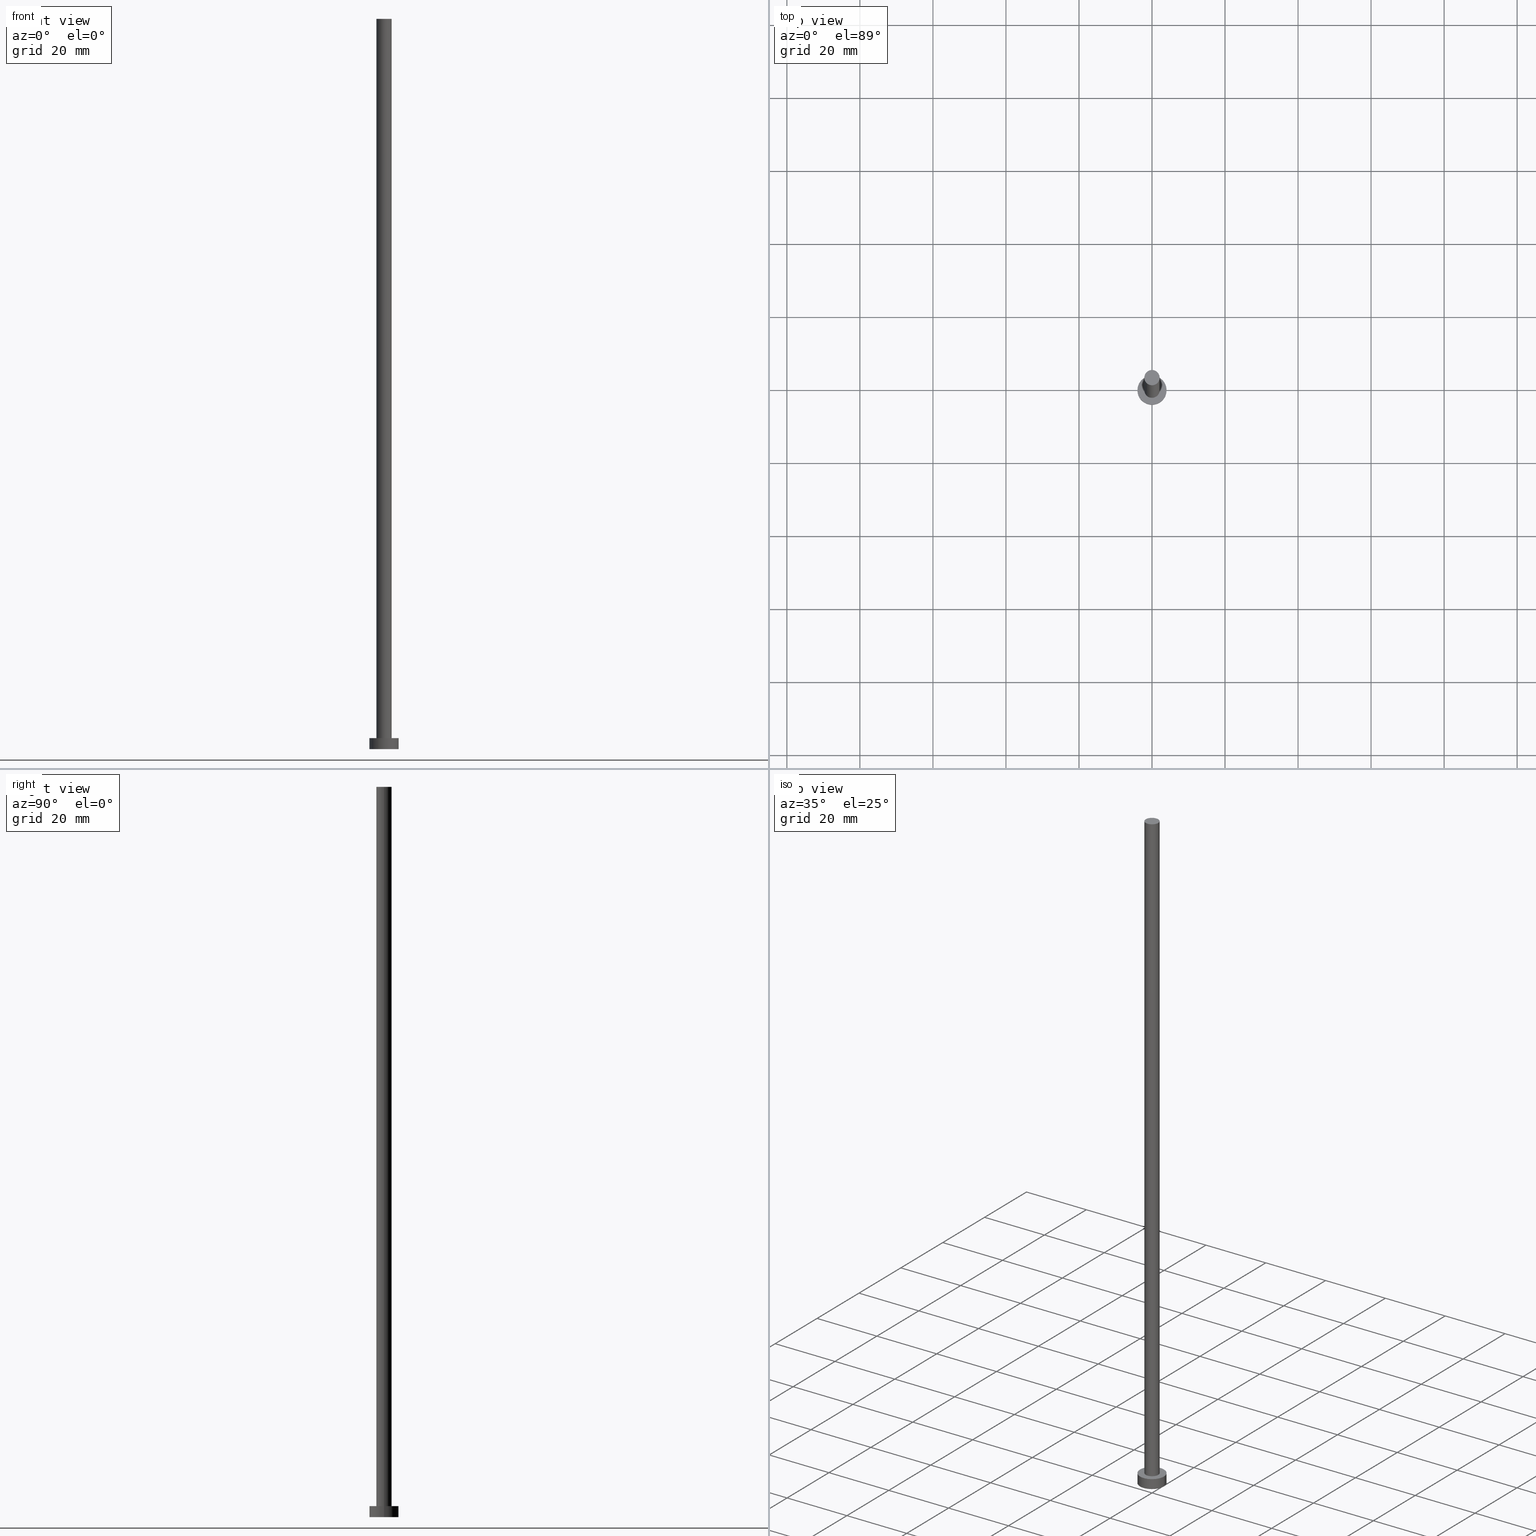
[diagram: canonical four-view strip — front | top / right | iso, engineering-drawing reading convention]
A machine part, canonical four-view strip (front | top / right | iso — engineering-drawing reading convention). The complete STEP part file that produces these views, byte-faithful:
ISO-10303-21;
HEADER;
FILE_DESCRIPTION (( 'STEP AP203' ),
    '1' );
FILE_NAME ('26c4.STEP',
    '2023-02-13T15:05:59',
    ( '' ),
    ( '' ),
    'SwSTEP 2.0',
    'SolidWorks 2019',
    '' );
FILE_SCHEMA (( 'CONFIG_CONTROL_DESIGN' ));
ENDSEC;

DATA;
#1 = ORIENTED_EDGE ( 'NONE', *, *, #224, .T. ) ;
#2 = PRODUCT_RELATED_PRODUCT_CATEGORY ( 'detail', '', ( #235 ) ) ;
#3 = DATE_AND_TIME ( #102, #132 ) ;
#4 = APPLICATION_CONTEXT ( 'configuration controlled 3d designs of mechanical parts and assemblies' ) ;
#5 = ADVANCED_FACE ( 'NONE', ( #133 ), #61, .T. ) ;
#6 = DIRECTION ( 'NONE',  ( 1.000000000000000000, 0.000000000000000000, -0.000000000000000000 ) ) ;
#7 = CARTESIAN_POINT ( 'NONE',  ( -4.000000000000000000, 0.000000000000000000, 3.000000000000000000 ) ) ;
#8 = DIRECTION ( 'NONE',  ( 0.000000000000000000, 0.000000000000000000, 1.000000000000000000 ) ) ;
#9 = CARTESIAN_POINT ( 'NONE',  ( 0.000000000000000000, 0.000000000000000000, 200.0000000000000000 ) ) ;
#10 = APPROVAL_STATUS ( 'not_yet_approved' ) ;
#11 = PLANE ( 'NONE',  #155 ) ;
#12 = LOCAL_TIME ( 16, 5, 59.00000000000000000, #193 ) ;
#13 = DATE_AND_TIME ( #156, #230 ) ;
#14 = EDGE_CURVE ( 'NONE', #70, #210, #127, .T. ) ;
#15 = AXIS2_PLACEMENT_3D ( 'NONE', #16, #176, #145 ) ;
#16 = CARTESIAN_POINT ( 'NONE',  ( 0.000000000000000000, 0.000000000000000000, 200.0000000000000000 ) ) ;
#17 = CYLINDRICAL_SURFACE ( 'NONE', #54, 4.000000000000000000 ) ;
#18 = LINE ( 'NONE', #83, #177 ) ;
#19 = CC_DESIGN_PERSON_AND_ORGANIZATION_ASSIGNMENT ( #106, #201, ( #235 ) ) ;
#20 = DIRECTION ( 'NONE',  ( -0.000000000000000000, -0.000000000000000000, -1.000000000000000000 ) ) ;
#21 = DIRECTION ( 'NONE',  ( 0.000000000000000000, 0.000000000000000000, 1.000000000000000000 ) ) ;
#22 = CARTESIAN_POINT ( 'NONE',  ( 0.000000000000000000, 0.000000000000000000, 0.000000000000000000 ) ) ;
#23 = CARTESIAN_POINT ( 'NONE',  ( 2.100000000000000089, 2.571758278209441957E-16, 3.000000000000000000 ) ) ;
#24 = DIRECTION ( 'NONE',  ( 0.000000000000000000, 0.000000000000000000, 1.000000000000000000 ) ) ;
#25 = DIRECTION ( 'NONE',  ( -0.000000000000000000, -0.000000000000000000, -1.000000000000000000 ) ) ;
#26 = VECTOR ( 'NONE', #25, 1000.000000000000000 ) ;
#27 = ORIENTED_EDGE ( 'NONE', *, *, #236, .F. ) ;
#28 = VERTEX_POINT ( 'NONE', #7 ) ;
#29 = EDGE_LOOP ( 'NONE', ( #31, #116, #153, #96 ) ) ;
#30 = APPROVAL_ROLE ( '' ) ;
#31 = ORIENTED_EDGE ( 'NONE', *, *, #124, .F. ) ;
#32 = VERTEX_POINT ( 'NONE', #80 ) ;
#33 = ORIENTED_EDGE ( 'NONE', *, *, #56, .F. ) ;
#34 = AXIS2_PLACEMENT_3D ( 'NONE', #208, #112, #183 ) ;
#35 = EDGE_CURVE ( 'NONE', #210, #70, #85, .T. ) ;
#36 = CARTESIAN_POINT ( 'NONE',  ( 4.000000000000000000, 4.898587196589412829E-16, 0.000000000000000000 ) ) ;
#37 = DIRECTION ( 'NONE',  ( 1.000000000000000000, 0.000000000000000000, 0.000000000000000000 ) ) ;
#38 = ORIENTED_EDGE ( 'NONE', *, *, #124, .T. ) ;
#39 = PERSON_AND_ORGANIZATION ( #139, #142 ) ;
#40 = ORIENTED_EDGE ( 'NONE', *, *, #95, .T. ) ;
#41 = ORIENTED_EDGE ( 'NONE', *, *, #35, .T. ) ;
#42 =( NAMED_UNIT ( * ) PLANE_ANGLE_UNIT ( ) SI_UNIT ( $, .RADIAN. ) );
#43 = PLANE ( 'NONE',  #34 ) ;
#44 = FACE_BOUND ( 'NONE', #74, .T. ) ;
#45 = APPROVAL ( #10, 'NEUR�EN�' ) ;
#46 = PERSON_AND_ORGANIZATION ( #139, #142 ) ;
#47 = COORDINATED_UNIVERSAL_TIME_OFFSET ( 1, 0, .AHEAD. ) ;
#48 = CARTESIAN_POINT ( 'NONE',  ( 0.000000000000000000, 0.000000000000000000, 0.000000000000000000 ) ) ;
#49 = CYLINDRICAL_SURFACE ( 'NONE', #162, 4.000000000000000000 ) ;
#50 =( LENGTH_UNIT ( ) NAMED_UNIT ( * ) SI_UNIT ( .MILLI., .METRE. ) );
#51 = DIRECTION ( 'NONE',  ( 0.000000000000000000, 0.000000000000000000, 1.000000000000000000 ) ) ;
#52 = ADVANCED_FACE ( 'NONE', ( #44, #221 ), #43, .T. ) ;
#53 = DIRECTION ( 'NONE',  ( 0.000000000000000000, 0.000000000000000000, 1.000000000000000000 ) ) ;
#54 = AXIS2_PLACEMENT_3D ( 'NONE', #187, #65, #164 ) ;
#55 = APPROVAL_PERSON_ORGANIZATION ( #46, #45, #243 ) ;
#56 = EDGE_CURVE ( 'NONE', #214, #63, #62, .T. ) ;
#57 = DIRECTION ( 'NONE',  ( 0.000000000000000000, 0.000000000000000000, 1.000000000000000000 ) ) ;
#58 = SHAPE_DEFINITION_REPRESENTATION ( #190, #246 ) ;
#59 = CALENDAR_DATE ( 2023, 13, 2 ) ;
#60 = CALENDAR_DATE ( 2023, 13, 2 ) ;
#61 = CYLINDRICAL_SURFACE ( 'NONE', #203, 2.100000000000000089 ) ;
#62 = CIRCLE ( 'NONE', #94, 2.100000000000000089 ) ;
#63 = VERTEX_POINT ( 'NONE', #23 ) ;
#64 = DIRECTION ( 'NONE',  ( 0.000000000000000000, 0.000000000000000000, 1.000000000000000000 ) ) ;
#65 = DIRECTION ( 'NONE',  ( -0.000000000000000000, -0.000000000000000000, -1.000000000000000000 ) ) ;
#66 =( GEOMETRIC_REPRESENTATION_CONTEXT ( 3 ) GLOBAL_UNCERTAINTY_ASSIGNED_CONTEXT ( ( #101 ) ) GLOBAL_UNIT_ASSIGNED_CONTEXT ( ( #50, #42, #238 ) ) REPRESENTATION_CONTEXT ( 'NONE', 'WORKASPACE' ) );
#67 = CARTESIAN_POINT ( 'NONE',  ( -4.000000000000000000, 0.000000000000000000, 0.000000000000000000 ) ) ;
#68 = LINE ( 'NONE', #234, #26 ) ;
#69 = MANIFOLD_SOLID_BREP ( 'P�idat vysunut�m3', #232 ) ;
#70 = VERTEX_POINT ( 'NONE', #91 ) ;
#71 = ORIENTED_EDGE ( 'NONE', *, *, #220, .T. ) ;
#72 = EDGE_CURVE ( 'NONE', #32, #181, #18, .T. ) ;
#73 = CIRCLE ( 'NONE', #227, 4.000000000000000000 ) ;
#74 = EDGE_LOOP ( 'NONE', ( #33, #251 ) ) ;
#75 = APPROVAL_STATUS ( 'not_yet_approved' ) ;
#76 = AXIS2_PLACEMENT_3D ( 'NONE', #174, #57, #216 ) ;
#77 = APPROVAL_PERSON_ORGANIZATION ( #123, #135, #30 ) ;
#78 = CC_DESIGN_PERSON_AND_ORGANIZATION_ASSIGNMENT ( #244, #184, ( #239 ) ) ;
#79 = PERSON_AND_ORGANIZATION_ROLE ( 'design_supplier' ) ;
#80 = CARTESIAN_POINT ( 'NONE',  ( 4.000000000000000000, 4.898587196589412829E-16, 3.000000000000000000 ) ) ;
#81 = DIRECTION ( 'NONE',  ( -1.000000000000000000, 0.000000000000000000, 0.000000000000000000 ) ) ;
#82 = AXIS2_PLACEMENT_3D ( 'NONE', #90, #255, #189 ) ;
#83 = CARTESIAN_POINT ( 'NONE',  ( 4.000000000000000000, 4.898587196589412829E-16, 3.000000000000000000 ) ) ;
#84 = CARTESIAN_POINT ( 'NONE',  ( -2.100000000000000089, 0.000000000000000000, 200.0000000000000000 ) ) ;
#85 = CIRCLE ( 'NONE', #217, 2.100000000000000089 ) ;
#86 = PERSON_AND_ORGANIZATION ( #139, #142 ) ;
#87 = CC_DESIGN_PERSON_AND_ORGANIZATION_ASSIGNMENT ( #39, #192, ( #241 ) ) ;
#88 = DIRECTION ( 'NONE',  ( -0.000000000000000000, -0.000000000000000000, -1.000000000000000000 ) ) ;
#89 = CARTESIAN_POINT ( 'NONE',  ( 0.000000000000000000, 0.000000000000000000, 3.000000000000000000 ) ) ;
#90 = CARTESIAN_POINT ( 'NONE',  ( 0.000000000000000000, 0.000000000000000000, 200.0000000000000000 ) ) ;
#91 = CARTESIAN_POINT ( 'NONE',  ( 2.100000000000000089, 2.571758278209441957E-16, 200.0000000000000000 ) ) ;
#92 = CC_DESIGN_APPROVAL ( #135, ( #239 ) ) ;
#93 = CARTESIAN_POINT ( 'NONE',  ( 0.000000000000000000, 0.000000000000000000, 3.000000000000000000 ) ) ;
#94 = AXIS2_PLACEMENT_3D ( 'NONE', #89, #149, #37 ) ;
#95 = EDGE_CURVE ( 'NONE', #70, #63, #68, .T. ) ;
#96 = ORIENTED_EDGE ( 'NONE', *, *, #224, .F. ) ;
#97 = EDGE_LOOP ( 'NONE', ( #167, #198 ) ) ;
#98 = ORIENTED_EDGE ( 'NONE', *, *, #14, .T. ) ;
#99 = EDGE_CURVE ( 'NONE', #63, #214, #173, .T. ) ;
#100 = APPLICATION_PROTOCOL_DEFINITION ( 'international standard', 'config_control_design', 1994, #4 ) ;
#101 = UNCERTAINTY_MEASURE_WITH_UNIT (LENGTH_MEASURE( 1.000000000000000082E-05 ), #50, 'distance_accuracy_value', 'NONE');
#102 = CALENDAR_DATE ( 2023, 13, 2 ) ;
#103 = CARTESIAN_POINT ( 'NONE',  ( 0.000000000000000000, 0.000000000000000000, 200.0000000000000000 ) ) ;
#104 = ADVANCED_FACE ( 'NONE', ( #128 ), #11, .F. ) ;
#105 = DATE_AND_TIME ( #60, #12 ) ;
#106 = PERSON_AND_ORGANIZATION ( #139, #142 ) ;
#107 = VERTEX_POINT ( 'NONE', #67 ) ;
#108 = CC_DESIGN_DATE_AND_TIME_ASSIGNMENT ( #3, #196, ( #241 ) ) ;
#109 = CC_DESIGN_APPROVAL ( #45, ( #241 ) ) ;
#110 = ORIENTED_EDGE ( 'NONE', *, *, #35, .F. ) ;
#111 = DIRECTION ( 'NONE',  ( -0.000000000000000000, -0.000000000000000000, -1.000000000000000000 ) ) ;
#112 = DIRECTION ( 'NONE',  ( 0.000000000000000000, 0.000000000000000000, 1.000000000000000000 ) ) ;
#113 = CARTESIAN_POINT ( 'NONE',  ( 0.000000000000000000, 0.000000000000000000, 200.0000000000000000 ) ) ;
#114 = CC_DESIGN_APPROVAL ( #179, ( #182 ) ) ;
#115 = DIRECTION ( 'NONE',  ( 1.000000000000000000, 0.000000000000000000, 0.000000000000000000 ) ) ;
#116 = ORIENTED_EDGE ( 'NONE', *, *, #72, .T. ) ;
#117 = LINE ( 'NONE', #252, #215 ) ;
#118 = AXIS2_PLACEMENT_3D ( 'NONE', #113, #21, #165 ) ;
#119 = ORIENTED_EDGE ( 'NONE', *, *, #220, .F. ) ;
#120 = APPROVAL_PERSON_ORGANIZATION ( #222, #179, #218 ) ;
#121 = CC_DESIGN_PERSON_AND_ORGANIZATION_ASSIGNMENT ( #159, #126, ( #182 ) ) ;
#122 = MECHANICAL_CONTEXT ( 'NONE', #4, 'mechanical' ) ;
#123 = PERSON_AND_ORGANIZATION ( #139, #142 ) ;
#124 = EDGE_CURVE ( 'NONE', #32, #28, #73, .T. ) ;
#125 = CC_DESIGN_SECURITY_CLASSIFICATION ( #241, ( #239 ) ) ;
#126 = PERSON_AND_ORGANIZATION_ROLE ( 'creator' ) ;
#127 = CIRCLE ( 'NONE', #15, 2.100000000000000089 ) ;
#128 = FACE_OUTER_BOUND ( 'NONE', #97, .T. ) ;
#129 = DATE_TIME_ROLE ( 'creation_date' ) ;
#130 = DIRECTION ( 'NONE',  ( 0.000000000000000000, 0.000000000000000000, 1.000000000000000000 ) ) ;
#131 = APPROVAL_DATE_TIME ( #13, #179 ) ;
#132 = LOCAL_TIME ( 16, 5, 59.00000000000000000, #158 ) ;
#133 = FACE_OUTER_BOUND ( 'NONE', #188, .T. ) ;
#134 = CARTESIAN_POINT ( 'NONE',  ( -2.100000000000000089, 0.000000000000000000, 3.000000000000000000 ) ) ;
#135 = APPROVAL ( #199, 'NEUR�EN�' ) ;
#136 = AXIS2_PLACEMENT_3D ( 'NONE', #148, #8, #223 ) ;
#137 = APPLICATION_CONTEXT ( 'configuration controlled 3d designs of mechanical parts and assemblies' ) ;
#138 = FACE_OUTER_BOUND ( 'NONE', #161, .T. ) ;
#139 = PERSON ( 'NEUR�EN�', 'NEUR�EN�', 'NEUR�EN�', ('NEUR�EN�'), ('NEUR�EN�'), ('NEUR�EN�') ) ;
#140 = ADVANCED_FACE ( 'NONE', ( #228 ), #185, .T. ) ;
#141 = ORIENTED_EDGE ( 'NONE', *, *, #14, .F. ) ;
#142 = ORGANIZATION ( 'NEUR�EN�', 'NEUR�EN�', '' ) ;
#143 = DIRECTION ( 'NONE',  ( 1.000000000000000000, 0.000000000000000000, 0.000000000000000000 ) ) ;
#144 = CIRCLE ( 'NONE', #240, 4.000000000000000000 ) ;
#145 = DIRECTION ( 'NONE',  ( 1.000000000000000000, 0.000000000000000000, 0.000000000000000000 ) ) ;
#146 = ADVANCED_FACE ( 'NONE', ( #138 ), #49, .T. ) ;
#147 = DIRECTION ( 'NONE',  ( 1.000000000000000000, 0.000000000000000000, 0.000000000000000000 ) ) ;
#148 = CARTESIAN_POINT ( 'NONE',  ( 0.000000000000000000, 0.000000000000000000, 3.000000000000000000 ) ) ;
#149 = DIRECTION ( 'NONE',  ( 0.000000000000000000, 0.000000000000000000, 1.000000000000000000 ) ) ;
#150 = FACE_OUTER_BOUND ( 'NONE', #205, .T. ) ;
#151 = ORIENTED_EDGE ( 'NONE', *, *, #99, .T. ) ;
#152 = CIRCLE ( 'NONE', #206, 4.000000000000000000 ) ;
#153 = ORIENTED_EDGE ( 'NONE', *, *, #229, .T. ) ;
#154 = APPROVAL_DATE_TIME ( #105, #45 ) ;
#155 = AXIS2_PLACEMENT_3D ( 'NONE', #48, #130, #6 ) ;
#156 = CALENDAR_DATE ( 2023, 13, 2 ) ;
#157 = DIRECTION ( 'NONE',  ( 0.000000000000000000, 0.000000000000000000, 1.000000000000000000 ) ) ;
#158 = COORDINATED_UNIVERSAL_TIME_OFFSET ( 1, 0, .AHEAD. ) ;
#159 = PERSON_AND_ORGANIZATION ( #139, #142 ) ;
#160 = CALENDAR_DATE ( 2023, 13, 2 ) ;
#161 = EDGE_LOOP ( 'NONE', ( #249, #27, #1, #169 ) ) ;
#162 = AXIS2_PLACEMENT_3D ( 'NONE', #93, #88, #81 ) ;
#163 = CARTESIAN_POINT ( 'NONE',  ( 0.000000000000000000, 0.000000000000000000, 0.000000000000000000 ) ) ;
#164 = DIRECTION ( 'NONE',  ( -1.000000000000000000, 0.000000000000000000, 0.000000000000000000 ) ) ;
#165 = DIRECTION ( 'NONE',  ( 1.000000000000000000, 0.000000000000000000, -0.000000000000000000 ) ) ;
#166 = DIRECTION ( 'NONE',  ( -0.000000000000000000, -0.000000000000000000, -1.000000000000000000 ) ) ;
#167 = ORIENTED_EDGE ( 'NONE', *, *, #207, .F. ) ;
#168 = FACE_OUTER_BOUND ( 'NONE', #29, .T. ) ;
#169 = ORIENTED_EDGE ( 'NONE', *, *, #207, .T. ) ;
#170 = CC_DESIGN_PERSON_AND_ORGANIZATION_ASSIGNMENT ( #86, #79, ( #239 ) ) ;
#171 = VECTOR ( 'NONE', #111, 1000.000000000000000 ) ;
#172 = EDGE_LOOP ( 'NONE', ( #242, #38 ) ) ;
#173 = CIRCLE ( 'NONE', #136, 2.100000000000000089 ) ;
#174 = CARTESIAN_POINT ( 'NONE',  ( 0.000000000000000000, 0.000000000000000000, 0.000000000000000000 ) ) ;
#175 = DESIGN_CONTEXT ( 'detailed design', #137, 'design' ) ;
#176 = DIRECTION ( 'NONE',  ( 0.000000000000000000, 0.000000000000000000, 1.000000000000000000 ) ) ;
#177 = VECTOR ( 'NONE', #166, 1000.000000000000000 ) ;
#178 = DIRECTION ( 'NONE',  ( -0.000000000000000000, -0.000000000000000000, -1.000000000000000000 ) ) ;
#179 = APPROVAL ( #75, 'NEUR�EN�' ) ;
#180 = ORIENTED_EDGE ( 'NONE', *, *, #95, .F. ) ;
#181 = VERTEX_POINT ( 'NONE', #36 ) ;
#182 = PRODUCT_DEFINITION ( 'NEZN�M�', '', #239, #175 ) ;
#183 = DIRECTION ( 'NONE',  ( 1.000000000000000000, 0.000000000000000000, -0.000000000000000000 ) ) ;
#184 = PERSON_AND_ORGANIZATION_ROLE ( 'creator' ) ;
#185 = PLANE ( 'NONE',  #118 ) ;
#186 = ADVANCED_FACE ( 'NONE', ( #168 ), #17, .T. ) ;
#187 = CARTESIAN_POINT ( 'NONE',  ( 0.000000000000000000, 0.000000000000000000, 3.000000000000000000 ) ) ;
#188 = EDGE_LOOP ( 'NONE', ( #141, #40, #151, #119 ) ) ;
#189 = DIRECTION ( 'NONE',  ( -1.000000000000000000, 0.000000000000000000, 0.000000000000000000 ) ) ;
#190 = PRODUCT_DEFINITION_SHAPE ( 'NONE', 'NONE',  #182 ) ;
#191 = CC_DESIGN_DATE_AND_TIME_ASSIGNMENT ( #248, #129, ( #182 ) ) ;
#192 = PERSON_AND_ORGANIZATION_ROLE ( 'classification_officer' ) ;
#193 = COORDINATED_UNIVERSAL_TIME_OFFSET ( 1, 0, .AHEAD. ) ;
#194 = APPROVAL_DATE_TIME ( #250, #135 ) ;
#195 = AXIS2_PLACEMENT_3D ( 'NONE', #22, #51, #254 ) ;
#196 = DATE_TIME_ROLE ( 'classification_date' ) ;
#197 = COORDINATED_UNIVERSAL_TIME_OFFSET ( 1, 0, .AHEAD. ) ;
#198 = ORIENTED_EDGE ( 'NONE', *, *, #229, .F. ) ;
#199 = APPROVAL_STATUS ( 'not_yet_approved' ) ;
#200 = EDGE_LOOP ( 'NONE', ( #41, #98 ) ) ;
#201 = PERSON_AND_ORGANIZATION_ROLE ( 'design_owner' ) ;
#202 = DIRECTION ( 'NONE',  ( -1.000000000000000000, 0.000000000000000000, 0.000000000000000000 ) ) ;
#203 = AXIS2_PLACEMENT_3D ( 'NONE', #103, #178, #202 ) ;
#204 = DIRECTION ( 'NONE',  ( 1.000000000000000000, 0.000000000000000000, 0.000000000000000000 ) ) ;
#205 = EDGE_LOOP ( 'NONE', ( #180, #110, #71, #237 ) ) ;
#206 = AXIS2_PLACEMENT_3D ( 'NONE', #253, #64, #147 ) ;
#207 = EDGE_CURVE ( 'NONE', #107, #181, #211, .T. ) ;
#208 = CARTESIAN_POINT ( 'NONE',  ( 0.000000000000000000, 0.000000000000000000, 3.000000000000000000 ) ) ;
#209 = LINE ( 'NONE', #233, #171 ) ;
#210 = VERTEX_POINT ( 'NONE', #84 ) ;
#211 = CIRCLE ( 'NONE', #195, 4.000000000000000000 ) ;
#212 = ADVANCED_FACE ( 'NONE', ( #150 ), #231, .T. ) ;
#213 = SECURITY_CLASSIFICATION_LEVEL ( 'unclassified' ) ;
#214 = VERTEX_POINT ( 'NONE', #134 ) ;
#215 = VECTOR ( 'NONE', #20, 1000.000000000000000 ) ;
#216 = DIRECTION ( 'NONE',  ( 1.000000000000000000, 0.000000000000000000, 0.000000000000000000 ) ) ;
#217 = AXIS2_PLACEMENT_3D ( 'NONE', #9, #157, #143 ) ;
#218 = APPROVAL_ROLE ( '' ) ;
#219 = COORDINATED_UNIVERSAL_TIME_OFFSET ( 1, 0, .AHEAD. ) ;
#220 = EDGE_CURVE ( 'NONE', #210, #214, #117, .T. ) ;
#221 = FACE_OUTER_BOUND ( 'NONE', #172, .T. ) ;
#222 = PERSON_AND_ORGANIZATION ( #139, #142 ) ;
#223 = DIRECTION ( 'NONE',  ( 1.000000000000000000, 0.000000000000000000, 0.000000000000000000 ) ) ;
#224 = EDGE_CURVE ( 'NONE', #28, #107, #209, .T. ) ;
#225 = LOCAL_TIME ( 16, 5, 59.00000000000000000, #47 ) ;
#226 = CARTESIAN_POINT ( 'NONE',  ( 0.000000000000000000, 0.000000000000000000, 3.000000000000000000 ) ) ;
#227 = AXIS2_PLACEMENT_3D ( 'NONE', #226, #24, #115 ) ;
#228 = FACE_OUTER_BOUND ( 'NONE', #200, .T. ) ;
#229 = EDGE_CURVE ( 'NONE', #181, #107, #144, .T. ) ;
#230 = LOCAL_TIME ( 16, 5, 59.00000000000000000, #219 ) ;
#231 = CYLINDRICAL_SURFACE ( 'NONE', #82, 2.100000000000000089 ) ;
#232 = CLOSED_SHELL ( 'NONE', ( #5, #186, #146, #52, #104, #212, #140 ) ) ;
#233 = CARTESIAN_POINT ( 'NONE',  ( -4.000000000000000000, 0.000000000000000000, 3.000000000000000000 ) ) ;
#234 = CARTESIAN_POINT ( 'NONE',  ( 2.100000000000000089, 2.571758278209441957E-16, 200.0000000000000000 ) ) ;
#235 = PRODUCT ( '26c4', '26c4', '', ( #122 ) ) ;
#236 = EDGE_CURVE ( 'NONE', #28, #32, #152, .T. ) ;
#237 = ORIENTED_EDGE ( 'NONE', *, *, #56, .T. ) ;
#238 =( NAMED_UNIT ( * ) SI_UNIT ( $, .STERADIAN. ) SOLID_ANGLE_UNIT ( ) );
#239 = PRODUCT_DEFINITION_FORMATION_WITH_SPECIFIED_SOURCE ( 'LIBOVOLN�', '', #235, .NOT_KNOWN. ) ;
#240 = AXIS2_PLACEMENT_3D ( 'NONE', #163, #53, #204 ) ;
#241 = SECURITY_CLASSIFICATION ( '', '', #213 ) ;
#242 = ORIENTED_EDGE ( 'NONE', *, *, #236, .T. ) ;
#243 = APPROVAL_ROLE ( '' ) ;
#244 = PERSON_AND_ORGANIZATION ( #139, #142 ) ;
#245 = APPLICATION_PROTOCOL_DEFINITION ( 'international standard', 'config_control_design', 1994, #137 ) ;
#246 = ADVANCED_BREP_SHAPE_REPRESENTATION ( '26c4', ( #69, #76 ), #66 ) ;
#247 = LOCAL_TIME ( 16, 5, 59.00000000000000000, #197 ) ;
#248 = DATE_AND_TIME ( #59, #225 ) ;
#249 = ORIENTED_EDGE ( 'NONE', *, *, #72, .F. ) ;
#250 = DATE_AND_TIME ( #160, #247 ) ;
#251 = ORIENTED_EDGE ( 'NONE', *, *, #99, .F. ) ;
#252 = CARTESIAN_POINT ( 'NONE',  ( -2.100000000000000089, 0.000000000000000000, 200.0000000000000000 ) ) ;
#253 = CARTESIAN_POINT ( 'NONE',  ( 0.000000000000000000, 0.000000000000000000, 3.000000000000000000 ) ) ;
#254 = DIRECTION ( 'NONE',  ( 1.000000000000000000, 0.000000000000000000, 0.000000000000000000 ) ) ;
#255 = DIRECTION ( 'NONE',  ( -0.000000000000000000, -0.000000000000000000, -1.000000000000000000 ) ) ;
ENDSEC;
END-ISO-10303-21;
